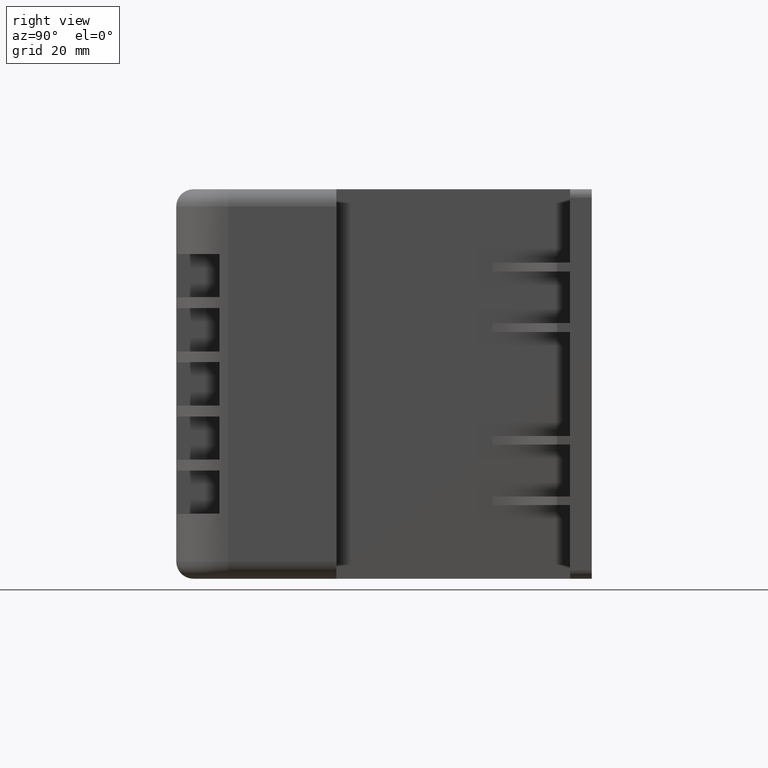
[diagram: clean part render]
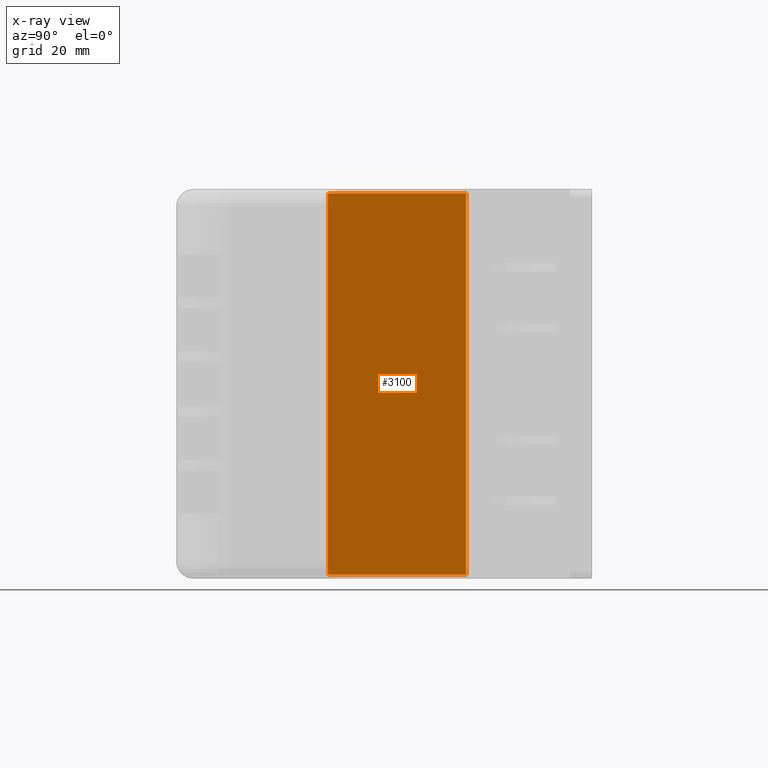
[diagram: x-ray — body ghosted, one internal face saturated and labeled with its STEP entity id]
A machine part, right view, then the same camera in x-ray: the body is ghosted and one INTERNAL B-rep face — a face not visible from any outside direction — is saturated and labeled: STEP entity #3100.
In plain terms, the highlighted planar face has unit normal (-1, -0, 0).
Its self-contained STEP definition (entity closure, byte-faithful):
#231=FACE_OUTER_BOUND('',#419,.T.);
#419=EDGE_LOOP('',(#1938,#1939,#1940,#1941));
#645=LINE('',#4618,#949);
#646=LINE('',#4621,#950);
#647=LINE('',#4623,#951);
#648=LINE('',#4624,#952);
#949=VECTOR('',#3707,10.);
#950=VECTOR('',#3710,10.);
#951=VECTOR('',#3711,10.);
#952=VECTOR('',#3712,10.);
#1250=VERTEX_POINT('',#4611);
#1253=VERTEX_POINT('',#4616);
#1254=VERTEX_POINT('',#4620);
#1255=VERTEX_POINT('',#4622);
#1525=EDGE_CURVE('',#1250,#1253,#645,.T.);
#1526=EDGE_CURVE('',#1254,#1250,#646,.T.);
#1527=EDGE_CURVE('',#1255,#1253,#647,.T.);
#1528=EDGE_CURVE('',#1254,#1255,#648,.T.);
#1938=ORIENTED_EDGE('',*,*,#1526,.T.);
#1939=ORIENTED_EDGE('',*,*,#1525,.T.);
#1940=ORIENTED_EDGE('',*,*,#1527,.F.);
#1941=ORIENTED_EDGE('',*,*,#1528,.F.);
#2759=PLANE('',#3398);
#3100=ADVANCED_FACE('',(#231),#2759,.T.);
#3398=AXIS2_PLACEMENT_3D('',#4619,#3708,#3709);
#3707=DIRECTION('',(0.,1.,0.));
#3708=DIRECTION('center_axis',(-1.,0.,1.48240006129025E-16));
#3709=DIRECTION('ref_axis',(1.48240006129025E-16,0.,1.));
#3710=DIRECTION('',(1.48240006129025E-16,0.,1.));
#3711=DIRECTION('',(1.48240006129025E-16,0.,1.));
#3712=DIRECTION('',(0.,1.,0.));
#4611=CARTESIAN_POINT('',(-1.00000000002909,0.,88.9999999999709));
#4616=CARTESIAN_POINT('',(-1.00000000002909,32.,88.9999999999709));
#4618=CARTESIAN_POINT('',(-1.00000000002909,0.,88.9999999999709));
#4619=CARTESIAN_POINT('Origin',(-1.00000000002911,0.,1.0000000000291));
#4620=CARTESIAN_POINT('',(-1.00000000002911,0.,1.0000000000291));
#4621=CARTESIAN_POINT('',(-1.00000000002911,0.,1.0000000000291));
#4622=CARTESIAN_POINT('',(-1.0000000000291,32.,1.0000000000291));
#4623=CARTESIAN_POINT('',(-1.00000000002911,32.,1.0000000000291));
#4624=CARTESIAN_POINT('',(-1.00000000002911,0.,1.0000000000291));